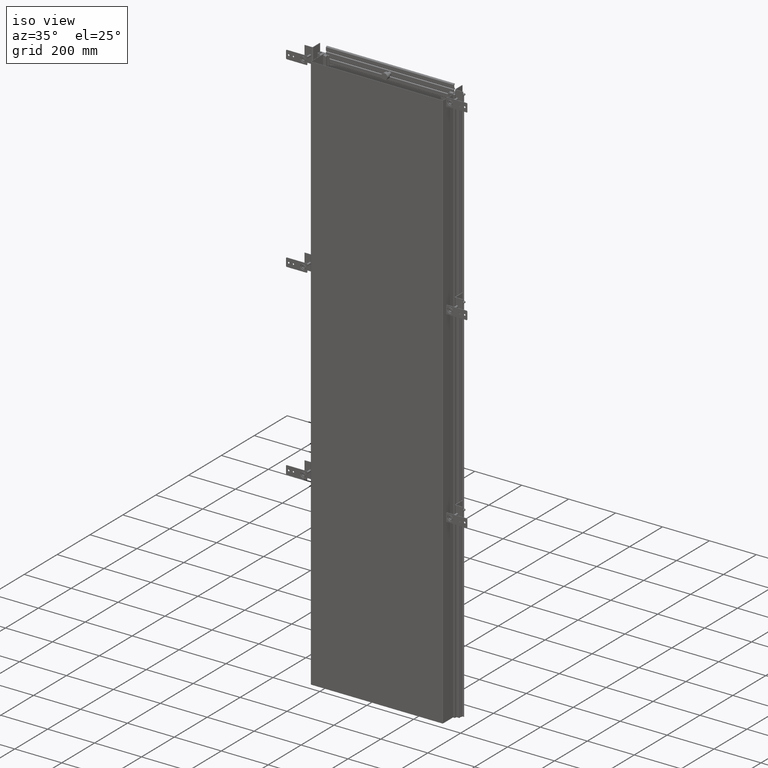
[diagram: clean part render]
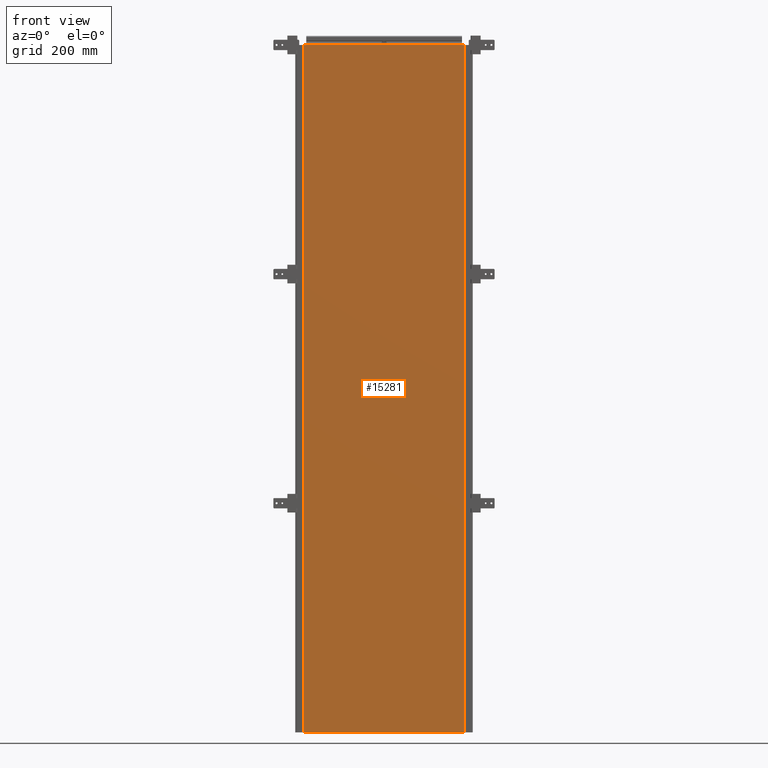
[diagram: tour spotlight — one face highlighted and labeled with its STEP entity id]
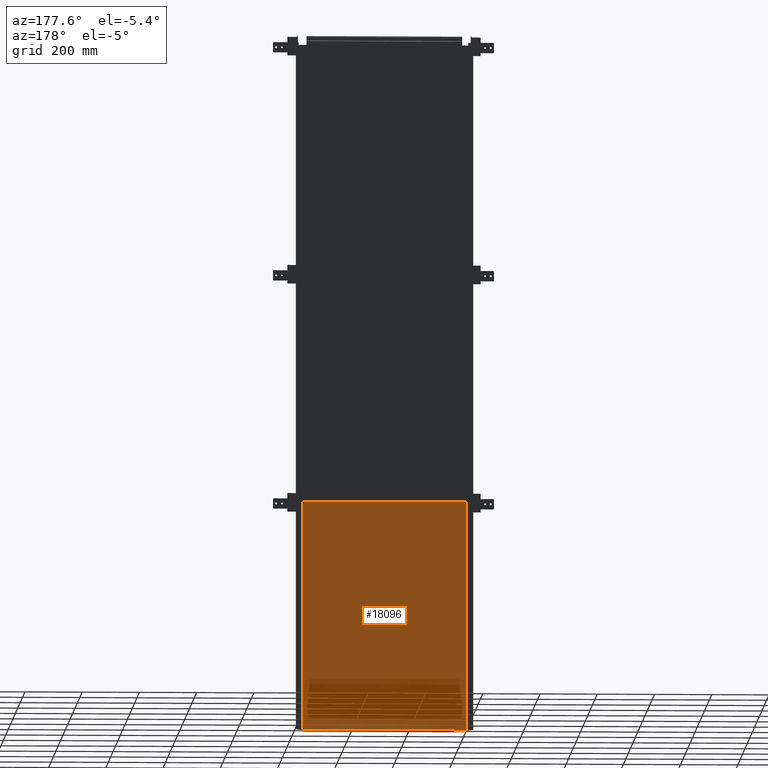
[diagram: tour spotlight — one face highlighted and labeled with its STEP entity id]
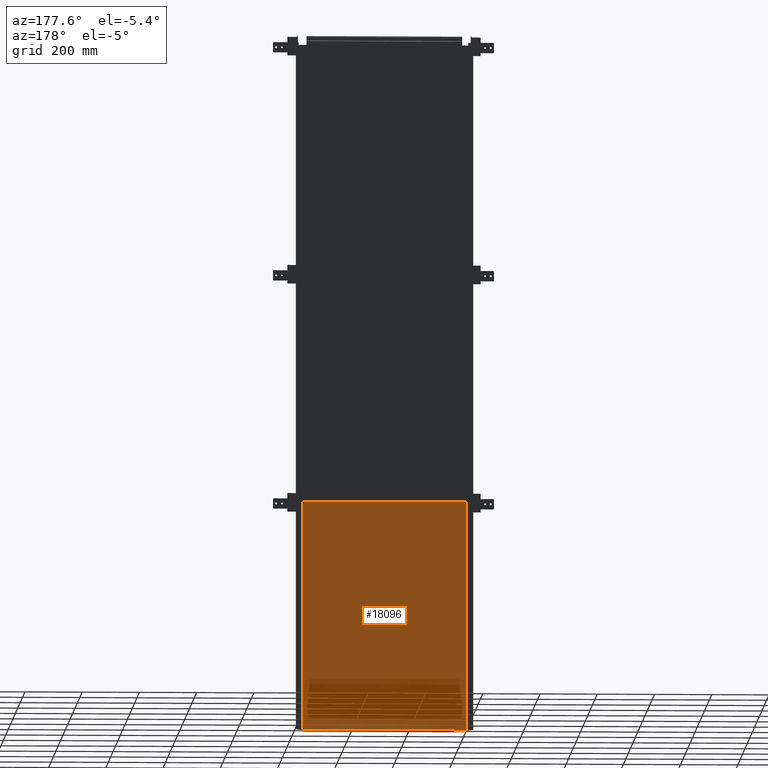
[diagram: tour spotlight — one face highlighted and labeled with its STEP entity id]
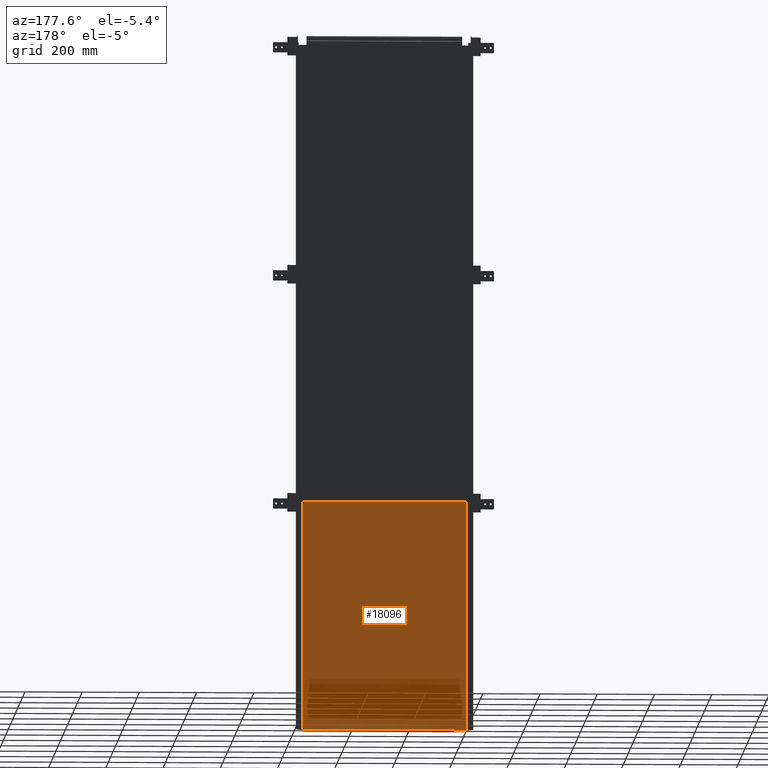
[diagram: tour spotlight — one face highlighted and labeled with its STEP entity id]
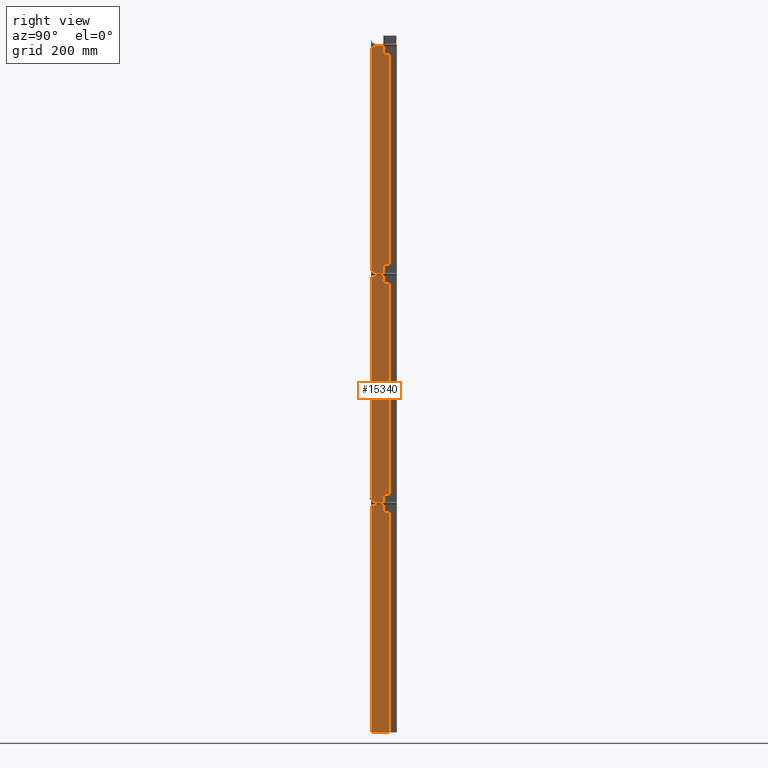
[diagram: tour spotlight — one face highlighted and labeled with its STEP entity id]
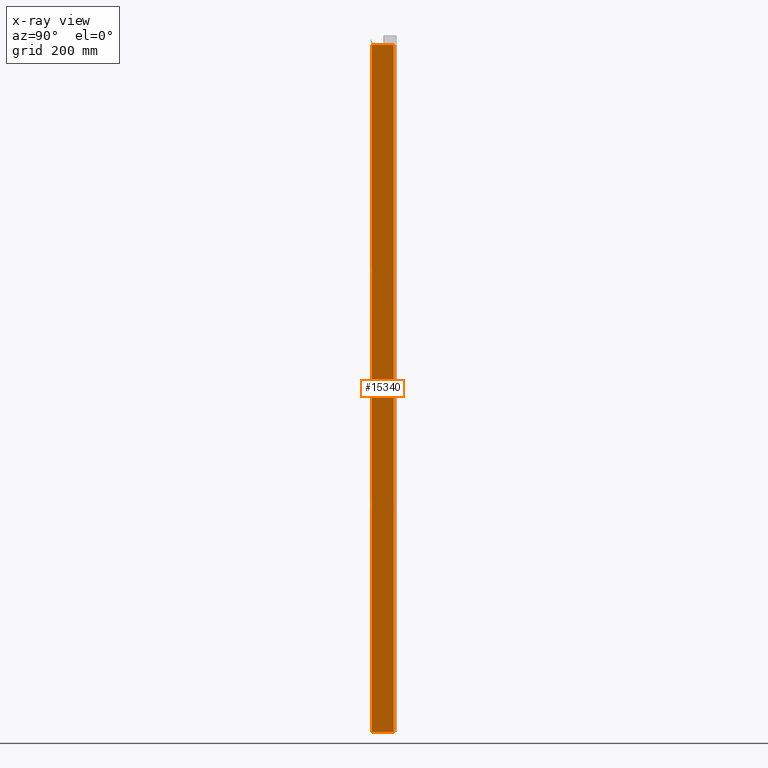
[diagram: x-ray of the same camera — body ghosted, this tour face saturated]
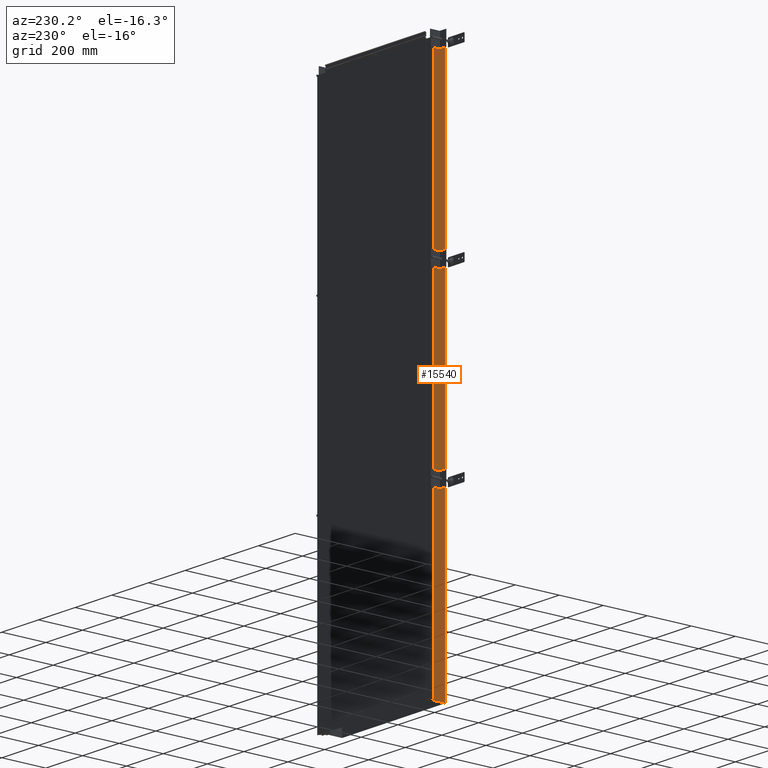
[diagram: tour spotlight — one face highlighted and labeled with its STEP entity id]
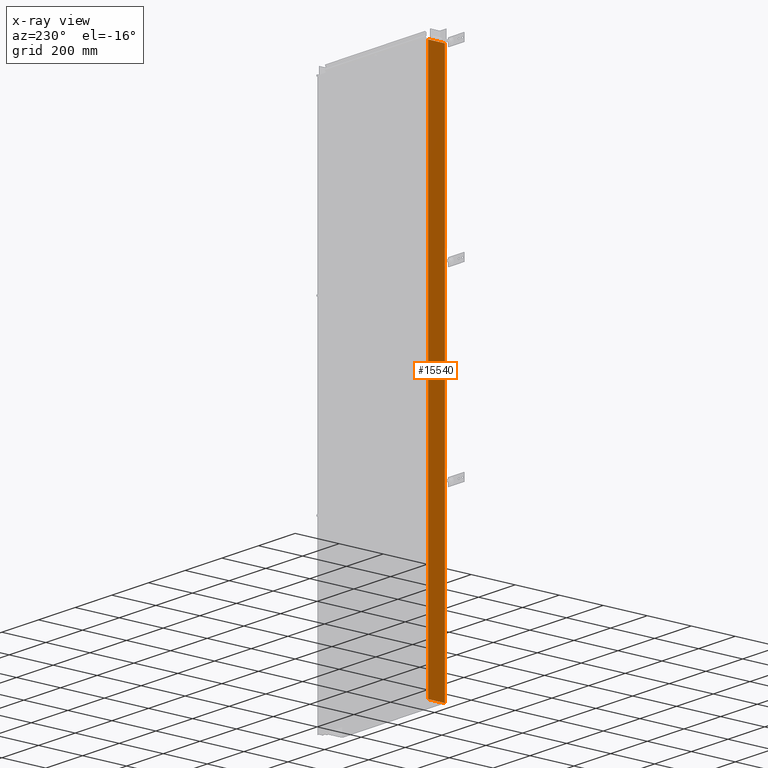
[diagram: x-ray of the same camera — body ghosted, this tour face saturated]
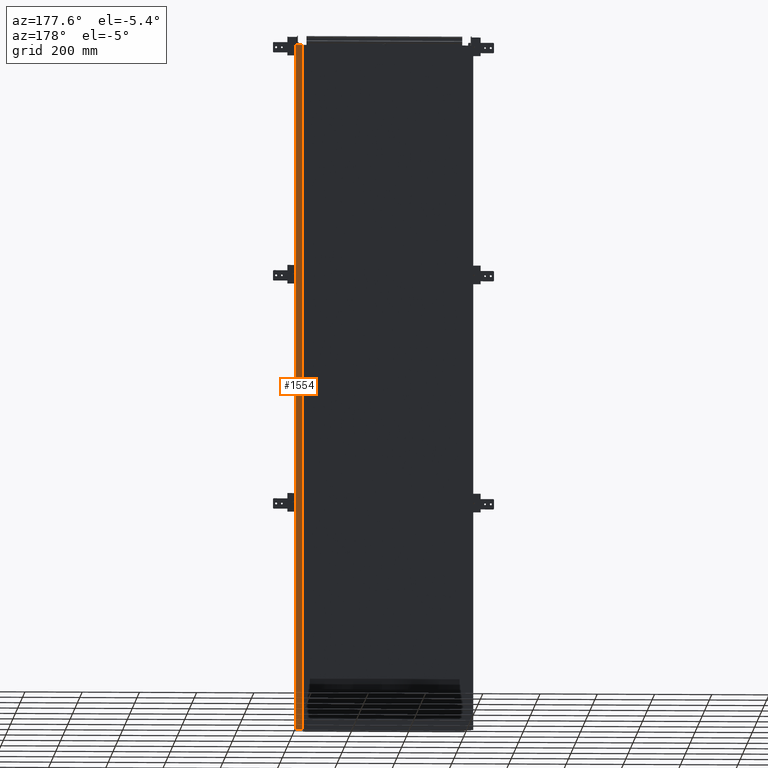
[diagram: tour spotlight — one face highlighted and labeled with its STEP entity id]
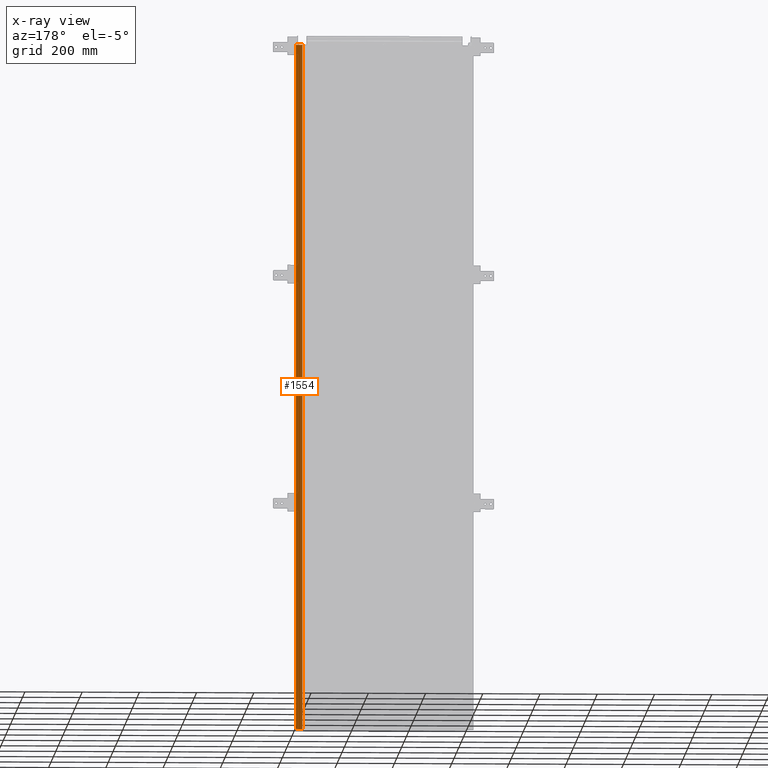
[diagram: x-ray of the same camera — body ghosted, this tour face saturated]
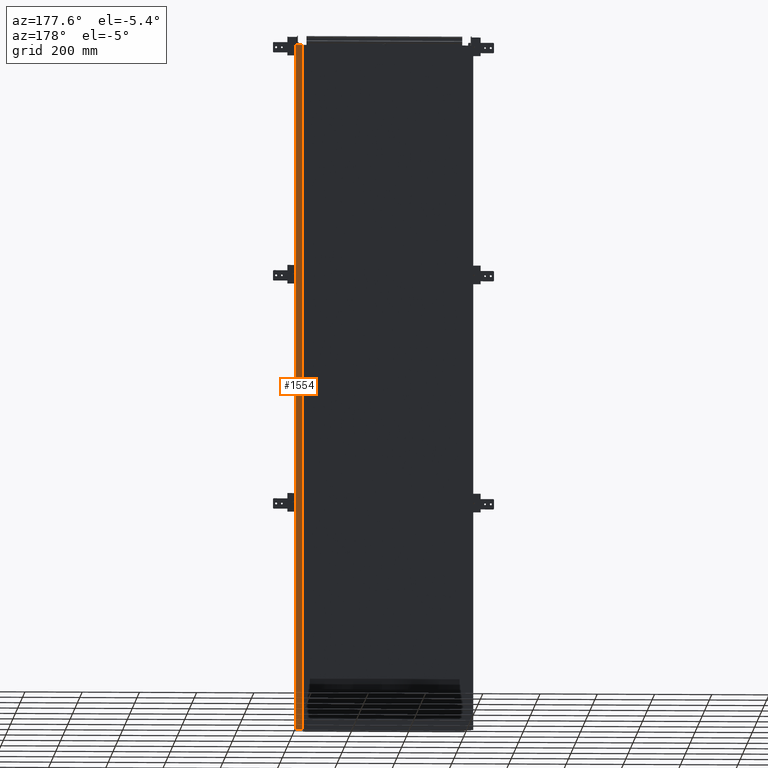
[diagram: tour spotlight — one face highlighted and labeled with its STEP entity id]
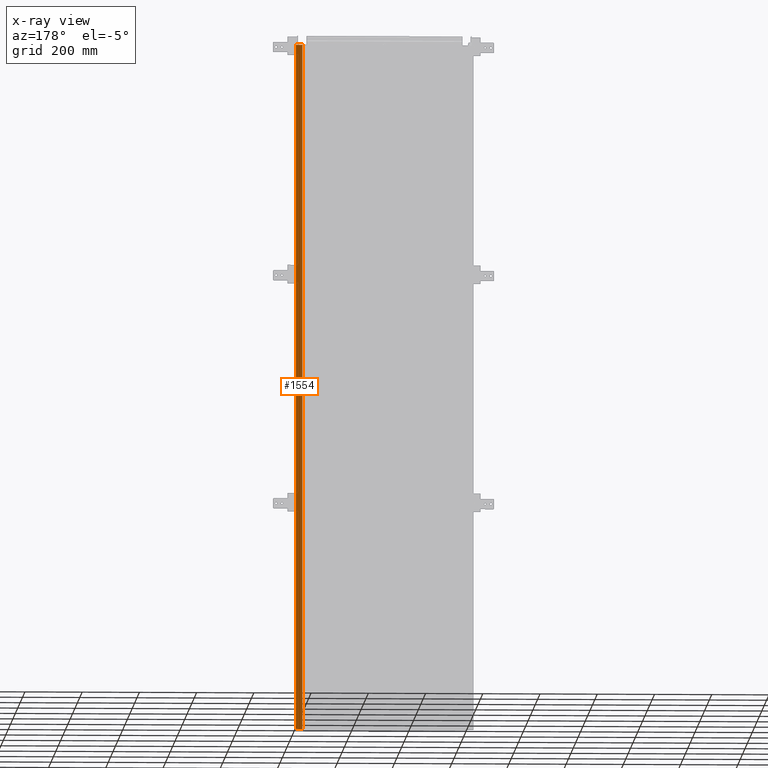
[diagram: x-ray of the same camera — body ghosted, this tour face saturated]
A machine part: a face-by-face anatomy tour. The part has 1036 B-rep faces; the first image is the clean iso view, then the 8 largest visible faces are spotlighted one at a time (largest first), each with its STEP entity span.

Face 1 — front view, entity #15281. In plain terms, the highlighted planar face has unit normal (0, 1, 0).
Definition (entity closure, byte-faithful):
#14866=DIRECTION('',(0.E0,0.E0,1.E0));
#14867=VECTOR('',#14866,5.59E2);
#14868=CARTESIAN_POINT('',(-1.2E3,0.E0,-2.795E2));
#14869=LINE('',#14868,#14867);
#14870=DIRECTION('',(0.E0,0.E0,-1.E0));
#14871=VECTOR('',#14870,5.59E2);
#14872=CARTESIAN_POINT('',(1.2E3,0.E0,2.795E2));
#14873=LINE('',#14872,#14871);
#14891=DIRECTION('',(-1.E0,0.E0,0.E0));
#14892=VECTOR('',#14891,2.4E3);
#14893=CARTESIAN_POINT('',(1.2E3,0.E0,-2.795E2));
#14894=LINE('',#14893,#14892);
#14987=DIRECTION('',(1.E0,0.E0,0.E0));
#14988=VECTOR('',#14987,2.4E3);
#14989=CARTESIAN_POINT('',(-1.2E3,0.E0,2.795E2));
#14990=LINE('',#14989,#14988);
#15190=CARTESIAN_POINT('',(1.2E3,0.E0,2.795E2));
#15191=VERTEX_POINT('',#15190);
#15192=CARTESIAN_POINT('',(-1.2E3,0.E0,2.795E2));
#15193=VERTEX_POINT('',#15192);
#15202=CARTESIAN_POINT('',(1.2E3,0.E0,-2.795E2));
#15203=VERTEX_POINT('',#15202);
#15204=CARTESIAN_POINT('',(-1.2E3,0.E0,-2.795E2));
#15205=VERTEX_POINT('',#15204);
#15266=CARTESIAN_POINT('',(0.E0,0.E0,0.E0));
#15267=DIRECTION('',(0.E0,1.E0,0.E0));
#15268=DIRECTION('',(1.E0,0.E0,0.E0));
#15269=AXIS2_PLACEMENT_3D('',#15266,#15267,#15268);
#15270=PLANE('',#15269);
#15272=ORIENTED_EDGE('',*,*,#15271,.T.);
#15274=ORIENTED_EDGE('',*,*,#15273,.T.);
#15276=ORIENTED_EDGE('',*,*,#15275,.T.);
#15278=ORIENTED_EDGE('',*,*,#15277,.T.);
#15279=EDGE_LOOP('',(#15272,#15274,#15276,#15278));
#15280=FACE_OUTER_BOUND('',#15279,.F.);
#15271=EDGE_CURVE('',#15205,#15193,#14869,.T.);
#15273=EDGE_CURVE('',#15193,#15191,#14990,.T.);
#15275=EDGE_CURVE('',#15191,#15203,#14873,.T.);
#15277=EDGE_CURVE('',#15203,#15205,#14894,.T.);
#15281=ADVANCED_FACE('',(#15280),#15270,.F.);

Face 2 — auxiliary view, entity #18096. In plain terms, the highlighted planar face has unit normal (0, 1, 0).
Definition (entity closure, byte-faithful):
#17981=DIRECTION('',(1.E0,0.E0,0.E0));
#17982=VECTOR('',#17981,5.695E2);
#17983=CARTESIAN_POINT('',(-2.8475E2,3.E0,4.E2));
#17984=LINE('',#17983,#17982);
#17985=DIRECTION('',(0.E0,0.E0,1.E0));
#17986=VECTOR('',#17985,8.E2);
#17987=CARTESIAN_POINT('',(-2.8475E2,3.E0,-4.E2));
#17988=LINE('',#17987,#17986);
#17989=DIRECTION('',(-1.E0,0.E0,0.E0));
#17990=VECTOR('',#17989,5.695E2);
#17991=CARTESIAN_POINT('',(2.8475E2,3.E0,-4.E2));
#17992=LINE('',#17991,#17990);
#17993=DIRECTION('',(0.E0,0.E0,-1.E0));
#17994=VECTOR('',#17993,8.E2);
#17995=CARTESIAN_POINT('',(2.8475E2,3.E0,4.E2));
#17996=LINE('',#17995,#17994);
#18005=CARTESIAN_POINT('',(-2.8475E2,3.E0,4.E2));
#18006=CARTESIAN_POINT('',(2.8475E2,3.E0,4.E2));
#18007=VERTEX_POINT('',#18005);
#18008=VERTEX_POINT('',#18006);
#18009=CARTESIAN_POINT('',(2.8475E2,3.E0,-4.E2));
#18010=VERTEX_POINT('',#18009);
#18011=CARTESIAN_POINT('',(-2.8475E2,3.E0,-4.E2));
#18012=VERTEX_POINT('',#18011);
#18085=CARTESIAN_POINT('',(0.E0,3.E0,0.E0));
#18086=DIRECTION('',(0.E0,1.E0,0.E0));
#18087=DIRECTION('',(1.E0,0.E0,0.E0));
#18088=AXIS2_PLACEMENT_3D('',#18085,#18086,#18087);
#18089=PLANE('',#18088);
#18090=ORIENTED_EDGE('',*,*,#18037,.F.);
#18091=ORIENTED_EDGE('',*,*,#18052,.F.);
#18092=ORIENTED_EDGE('',*,*,#18066,.F.);
#18093=ORIENTED_EDGE('',*,*,#18079,.F.);
#18094=EDGE_LOOP('',(#18090,#18091,#18092,#18093));
#18095=FACE_OUTER_BOUND('',#18094,.F.);
#18037=EDGE_CURVE('',#18007,#18008,#17984,.T.);
#18052=EDGE_CURVE('',#18012,#18007,#17988,.T.);
#18066=EDGE_CURVE('',#18010,#18012,#17992,.T.);
#18079=EDGE_CURVE('',#18008,#18010,#17996,.T.);
#18096=ADVANCED_FACE('',(#18095),#18089,.T.);

Face 3 — auxiliary view, entity #18096. In plain terms, the highlighted planar face has unit normal (0, 1, 0).
Definition (entity closure, byte-faithful):
#17981=DIRECTION('',(1.E0,0.E0,0.E0));
#17982=VECTOR('',#17981,5.695E2);
#17983=CARTESIAN_POINT('',(-2.8475E2,3.E0,4.E2));
#17984=LINE('',#17983,#17982);
#17985=DIRECTION('',(0.E0,0.E0,1.E0));
#17986=VECTOR('',#17985,8.E2);
#17987=CARTESIAN_POINT('',(-2.8475E2,3.E0,-4.E2));
#17988=LINE('',#17987,#17986);
#17989=DIRECTION('',(-1.E0,0.E0,0.E0));
#17990=VECTOR('',#17989,5.695E2);
#17991=CARTESIAN_POINT('',(2.8475E2,3.E0,-4.E2));
#17992=LINE('',#17991,#17990);
#17993=DIRECTION('',(0.E0,0.E0,-1.E0));
#17994=VECTOR('',#17993,8.E2);
#17995=CARTESIAN_POINT('',(2.8475E2,3.E0,4.E2));
#17996=LINE('',#17995,#17994);
#18005=CARTESIAN_POINT('',(-2.8475E2,3.E0,4.E2));
#18006=CARTESIAN_POINT('',(2.8475E2,3.E0,4.E2));
#18007=VERTEX_POINT('',#18005);
#18008=VERTEX_POINT('',#18006);
#18009=CARTESIAN_POINT('',(2.8475E2,3.E0,-4.E2));
#18010=VERTEX_POINT('',#18009);
#18011=CARTESIAN_POINT('',(-2.8475E2,3.E0,-4.E2));
#18012=VERTEX_POINT('',#18011);
#18085=CARTESIAN_POINT('',(0.E0,3.E0,0.E0));
#18086=DIRECTION('',(0.E0,1.E0,0.E0));
#18087=DIRECTION('',(1.E0,0.E0,0.E0));
#18088=AXIS2_PLACEMENT_3D('',#18085,#18086,#18087);
#18089=PLANE('',#18088);
#18090=ORIENTED_EDGE('',*,*,#18037,.F.);
#18091=ORIENTED_EDGE('',*,*,#18052,.F.);
#18092=ORIENTED_EDGE('',*,*,#18066,.F.);
#18093=ORIENTED_EDGE('',*,*,#18079,.F.);
#18094=EDGE_LOOP('',(#18090,#18091,#18092,#18093));
#18095=FACE_OUTER_BOUND('',#18094,.F.);
#18037=EDGE_CURVE('',#18007,#18008,#17984,.T.);
#18052=EDGE_CURVE('',#18012,#18007,#17988,.T.);
#18066=EDGE_CURVE('',#18010,#18012,#17992,.T.);
#18079=EDGE_CURVE('',#18008,#18010,#17996,.T.);
#18096=ADVANCED_FACE('',(#18095),#18089,.T.);

Face 4 — auxiliary view, entity #18096. In plain terms, the highlighted planar face has unit normal (0, 1, 0).
Definition (entity closure, byte-faithful):
#17981=DIRECTION('',(1.E0,0.E0,0.E0));
#17982=VECTOR('',#17981,5.695E2);
#17983=CARTESIAN_POINT('',(-2.8475E2,3.E0,4.E2));
#17984=LINE('',#17983,#17982);
#17985=DIRECTION('',(0.E0,0.E0,1.E0));
#17986=VECTOR('',#17985,8.E2);
#17987=CARTESIAN_POINT('',(-2.8475E2,3.E0,-4.E2));
#17988=LINE('',#17987,#17986);
#17989=DIRECTION('',(-1.E0,0.E0,0.E0));
#17990=VECTOR('',#17989,5.695E2);
#17991=CARTESIAN_POINT('',(2.8475E2,3.E0,-4.E2));
#17992=LINE('',#17991,#17990);
#17993=DIRECTION('',(0.E0,0.E0,-1.E0));
#17994=VECTOR('',#17993,8.E2);
#17995=CARTESIAN_POINT('',(2.8475E2,3.E0,4.E2));
#17996=LINE('',#17995,#17994);
#18005=CARTESIAN_POINT('',(-2.8475E2,3.E0,4.E2));
#18006=CARTESIAN_POINT('',(2.8475E2,3.E0,4.E2));
#18007=VERTEX_POINT('',#18005);
#18008=VERTEX_POINT('',#18006);
#18009=CARTESIAN_POINT('',(2.8475E2,3.E0,-4.E2));
#18010=VERTEX_POINT('',#18009);
#18011=CARTESIAN_POINT('',(-2.8475E2,3.E0,-4.E2));
#18012=VERTEX_POINT('',#18011);
#18085=CARTESIAN_POINT('',(0.E0,3.E0,0.E0));
#18086=DIRECTION('',(0.E0,1.E0,0.E0));
#18087=DIRECTION('',(1.E0,0.E0,0.E0));
#18088=AXIS2_PLACEMENT_3D('',#18085,#18086,#18087);
#18089=PLANE('',#18088);
#18090=ORIENTED_EDGE('',*,*,#18037,.F.);
#18091=ORIENTED_EDGE('',*,*,#18052,.F.);
#18092=ORIENTED_EDGE('',*,*,#18066,.F.);
#18093=ORIENTED_EDGE('',*,*,#18079,.F.);
#18094=EDGE_LOOP('',(#18090,#18091,#18092,#18093));
#18095=FACE_OUTER_BOUND('',#18094,.F.);
#18037=EDGE_CURVE('',#18007,#18008,#17984,.T.);
#18052=EDGE_CURVE('',#18012,#18007,#17988,.T.);
#18066=EDGE_CURVE('',#18010,#18012,#17992,.T.);
#18079=EDGE_CURVE('',#18008,#18010,#17996,.T.);
#18096=ADVANCED_FACE('',(#18095),#18089,.T.);

Face 5 — right view, entity #15340. An x-ray twin of the same camera follows (body ghosted, this face saturated) — the face is partly hidden behind the body. In plain terms, the highlighted planar face has unit normal (1, 0, 0).
Definition (entity closure, byte-faithful):
#14882=DIRECTION('',(-1.E0,0.E0,0.E0));
#14883=VECTOR('',#14882,2.4E3);
#14884=CARTESIAN_POINT('',(1.2E3,2.E0,-2.815E2));
#14885=LINE('',#14884,#14883);
#14900=DIRECTION('',(0.E0,1.E0,0.E0));
#14901=VECTOR('',#14900,7.6E1);
#14902=CARTESIAN_POINT('',(-1.2E3,2.E0,-2.815E2));
#14903=LINE('',#14902,#14901);
#14904=DIRECTION('',(0.E0,-1.E0,0.E0));
#14905=VECTOR('',#14904,7.6E1);
#14906=CARTESIAN_POINT('',(1.2E3,7.8E1,-2.815E2));
#14907=LINE('',#14906,#14905);
#14925=DIRECTION('',(-1.E0,0.E0,0.E0));
#14926=VECTOR('',#14925,2.4E3);
#14927=CARTESIAN_POINT('',(1.2E3,7.8E1,-2.815E2));
#14928=LINE('',#14927,#14926);
#15210=CARTESIAN_POINT('',(1.2E3,2.E0,-2.815E2));
#15211=CARTESIAN_POINT('',(-1.2E3,2.E0,-2.815E2));
#15212=VERTEX_POINT('',#15210);
#15213=VERTEX_POINT('',#15211);
#15242=CARTESIAN_POINT('',(-1.2E3,7.8E1,-2.815E2));
#15243=VERTEX_POINT('',#15242);
#15244=CARTESIAN_POINT('',(1.2E3,7.8E1,-2.815E2));
#15245=VERTEX_POINT('',#15244);
#15326=CARTESIAN_POINT('',(6.2976E2,0.E0,-2.815E2));
#15327=DIRECTION('',(0.E0,0.E0,-1.E0));
#15328=DIRECTION('',(-1.E0,0.E0,0.E0));
#15329=AXIS2_PLACEMENT_3D('',#15326,#15327,#15328);
#15330=PLANE('',#15329);
#15332=ORIENTED_EDGE('',*,*,#15331,.F.);
#15333=ORIENTED_EDGE('',*,*,#15317,.F.);
#15335=ORIENTED_EDGE('',*,*,#15334,.F.);
#15337=ORIENTED_EDGE('',*,*,#15336,.T.);
#15338=EDGE_LOOP('',(#15332,#15333,#15335,#15337));
#15339=FACE_OUTER_BOUND('',#15338,.F.);
#15317=EDGE_CURVE('',#15212,#15213,#14885,.T.);
#15331=EDGE_CURVE('',#15213,#15243,#14903,.T.);
#15334=EDGE_CURVE('',#15245,#15212,#14907,.T.);
#15336=EDGE_CURVE('',#15245,#15243,#14928,.T.);
#15340=ADVANCED_FACE('',(#15339),#15330,.T.);

Face 6 — auxiliary view, entity #15540. An x-ray twin of the same camera follows (body ghosted, this face saturated) — the face is partly hidden behind the body. In plain terms, the highlighted planar face has unit normal (-1, 0, 0).
Definition (entity closure, byte-faithful):
#14978=DIRECTION('',(1.E0,0.E0,0.E0));
#14979=VECTOR('',#14978,2.4E3);
#14980=CARTESIAN_POINT('',(-1.2E3,2.E0,2.815E2));
#14981=LINE('',#14980,#14979);
#14996=DIRECTION('',(0.E0,1.E0,0.E0));
#14997=VECTOR('',#14996,7.6E1);
#14998=CARTESIAN_POINT('',(1.2E3,2.E0,2.815E2));
#14999=LINE('',#14998,#14997);
#15000=DIRECTION('',(0.E0,-1.E0,0.E0));
#15001=VECTOR('',#15000,7.6E1);
#15002=CARTESIAN_POINT('',(-1.2E3,7.8E1,2.815E2));
#15003=LINE('',#15002,#15001);
#15021=DIRECTION('',(1.E0,0.E0,0.E0));
#15022=VECTOR('',#15021,2.4E3);
#15023=CARTESIAN_POINT('',(-1.2E3,7.8E1,2.815E2));
#15024=LINE('',#15023,#15022);
#15186=CARTESIAN_POINT('',(-1.2E3,2.E0,2.815E2));
#15187=CARTESIAN_POINT('',(1.2E3,2.E0,2.815E2));
#15188=VERTEX_POINT('',#15186);
#15189=VERTEX_POINT('',#15187);
#15218=CARTESIAN_POINT('',(1.2E3,7.8E1,2.815E2));
#15219=VERTEX_POINT('',#15218);
#15220=CARTESIAN_POINT('',(-1.2E3,7.8E1,2.815E2));
#15221=VERTEX_POINT('',#15220);
#15526=CARTESIAN_POINT('',(-6.2976E2,0.E0,2.815E2));
#15527=DIRECTION('',(0.E0,0.E0,1.E0));
#15528=DIRECTION('',(1.E0,0.E0,0.E0));
#15529=AXIS2_PLACEMENT_3D('',#15526,#15527,#15528);
#15530=PLANE('',#15529);
#15532=ORIENTED_EDGE('',*,*,#15531,.F.);
#15533=ORIENTED_EDGE('',*,*,#15517,.F.);
#15535=ORIENTED_EDGE('',*,*,#15534,.F.);
#15537=ORIENTED_EDGE('',*,*,#15536,.T.);
#15538=EDGE_LOOP('',(#15532,#15533,#15535,#15537));
#15539=FACE_OUTER_BOUND('',#15538,.F.);
#15517=EDGE_CURVE('',#15188,#15189,#14981,.T.);
#15531=EDGE_CURVE('',#15189,#15219,#14999,.T.);
#15534=EDGE_CURVE('',#15221,#15188,#15003,.T.);
#15536=EDGE_CURVE('',#15221,#15219,#15024,.T.);
#15540=ADVANCED_FACE('',(#15539),#15530,.T.);

Face 7 — auxiliary view, entity #1554. An x-ray twin of the same camera follows (body ghosted, this face saturated) — the face is partly hidden behind the body. In plain terms, the highlighted planar face has unit normal (0, 1, 0).
Definition (entity closure, byte-faithful):
#612=DIRECTION('',(0.E0,1.E0,0.E0));
#613=VECTOR('',#612,2.4E3);
#614=CARTESIAN_POINT('',(-4.E1,-1.2E3,-5.E1));
#615=LINE('',#614,#613);
#616=DIRECTION('',(-1.E0,0.E0,0.E0));
#617=VECTOR('',#616,2.22E1);
#618=CARTESIAN_POINT('',(-1.78E1,1.2E3,-5.E1));
#619=LINE('',#618,#617);
#620=DIRECTION('',(1.E0,0.E0,0.E0));
#621=VECTOR('',#620,2.22E1);
#622=CARTESIAN_POINT('',(-4.E1,-1.2E3,-5.E1));
#623=LINE('',#622,#621);
#624=DIRECTION('',(0.E0,-1.E0,0.E0));
#625=VECTOR('',#624,2.4E3);
#626=CARTESIAN_POINT('',(-1.78E1,1.2E3,-5.E1));
#627=LINE('',#626,#625);
#860=CARTESIAN_POINT('',(-4.E1,-1.2E3,-5.E1));
#862=VERTEX_POINT('',#860);
#898=CARTESIAN_POINT('',(-4.E1,1.2E3,-5.E1));
#900=VERTEX_POINT('',#898);
#944=CARTESIAN_POINT('',(-1.78E1,1.2E3,-5.E1));
#945=CARTESIAN_POINT('',(-1.78E1,-1.2E3,-5.E1));
#946=VERTEX_POINT('',#944);
#947=VERTEX_POINT('',#945);
#1542=CARTESIAN_POINT('',(-1.83E1,-1.2E3,-5.E1));
#1543=DIRECTION('',(0.E0,0.E0,-1.E0));
#1544=DIRECTION('',(-1.E0,0.E0,0.E0));
#1545=AXIS2_PLACEMENT_3D('',#1542,#1543,#1544);
#1546=PLANE('',#1545);
#1547=ORIENTED_EDGE('',*,*,#1223,.T.);
#1548=ORIENTED_EDGE('',*,*,#1535,.F.);
#1549=ORIENTED_EDGE('',*,*,#1117,.T.);
#1551=ORIENTED_EDGE('',*,*,#1550,.F.);
#1552=EDGE_LOOP('',(#1547,#1548,#1549,#1551));
#1553=FACE_OUTER_BOUND('',#1552,.F.);
#1117=EDGE_CURVE('',#862,#947,#623,.T.);
#1223=EDGE_CURVE('',#946,#900,#619,.T.);
#1535=EDGE_CURVE('',#862,#900,#615,.T.);
#1550=EDGE_CURVE('',#946,#947,#627,.T.);
#1554=ADVANCED_FACE('',(#1553),#1546,.T.);

Face 8 — auxiliary view, entity #1554. An x-ray twin of the same camera follows (body ghosted, this face saturated) — the face is partly hidden behind the body. In plain terms, the highlighted planar face has unit normal (0, 1, 0).
Definition (entity closure, byte-faithful):
#612=DIRECTION('',(0.E0,1.E0,0.E0));
#613=VECTOR('',#612,2.4E3);
#614=CARTESIAN_POINT('',(-4.E1,-1.2E3,-5.E1));
#615=LINE('',#614,#613);
#616=DIRECTION('',(-1.E0,0.E0,0.E0));
#617=VECTOR('',#616,2.22E1);
#618=CARTESIAN_POINT('',(-1.78E1,1.2E3,-5.E1));
#619=LINE('',#618,#617);
#620=DIRECTION('',(1.E0,0.E0,0.E0));
#621=VECTOR('',#620,2.22E1);
#622=CARTESIAN_POINT('',(-4.E1,-1.2E3,-5.E1));
#623=LINE('',#622,#621);
#624=DIRECTION('',(0.E0,-1.E0,0.E0));
#625=VECTOR('',#624,2.4E3);
#626=CARTESIAN_POINT('',(-1.78E1,1.2E3,-5.E1));
#627=LINE('',#626,#625);
#860=CARTESIAN_POINT('',(-4.E1,-1.2E3,-5.E1));
#862=VERTEX_POINT('',#860);
#898=CARTESIAN_POINT('',(-4.E1,1.2E3,-5.E1));
#900=VERTEX_POINT('',#898);
#944=CARTESIAN_POINT('',(-1.78E1,1.2E3,-5.E1));
#945=CARTESIAN_POINT('',(-1.78E1,-1.2E3,-5.E1));
#946=VERTEX_POINT('',#944);
#947=VERTEX_POINT('',#945);
#1542=CARTESIAN_POINT('',(-1.83E1,-1.2E3,-5.E1));
#1543=DIRECTION('',(0.E0,0.E0,-1.E0));
#1544=DIRECTION('',(-1.E0,0.E0,0.E0));
#1545=AXIS2_PLACEMENT_3D('',#1542,#1543,#1544);
#1546=PLANE('',#1545);
#1547=ORIENTED_EDGE('',*,*,#1223,.T.);
#1548=ORIENTED_EDGE('',*,*,#1535,.F.);
#1549=ORIENTED_EDGE('',*,*,#1117,.T.);
#1551=ORIENTED_EDGE('',*,*,#1550,.F.);
#1552=EDGE_LOOP('',(#1547,#1548,#1549,#1551));
#1553=FACE_OUTER_BOUND('',#1552,.F.);
#1117=EDGE_CURVE('',#862,#947,#623,.T.);
#1223=EDGE_CURVE('',#946,#900,#619,.T.);
#1535=EDGE_CURVE('',#862,#900,#615,.T.);
#1550=EDGE_CURVE('',#946,#947,#627,.T.);
#1554=ADVANCED_FACE('',(#1553),#1546,.T.);